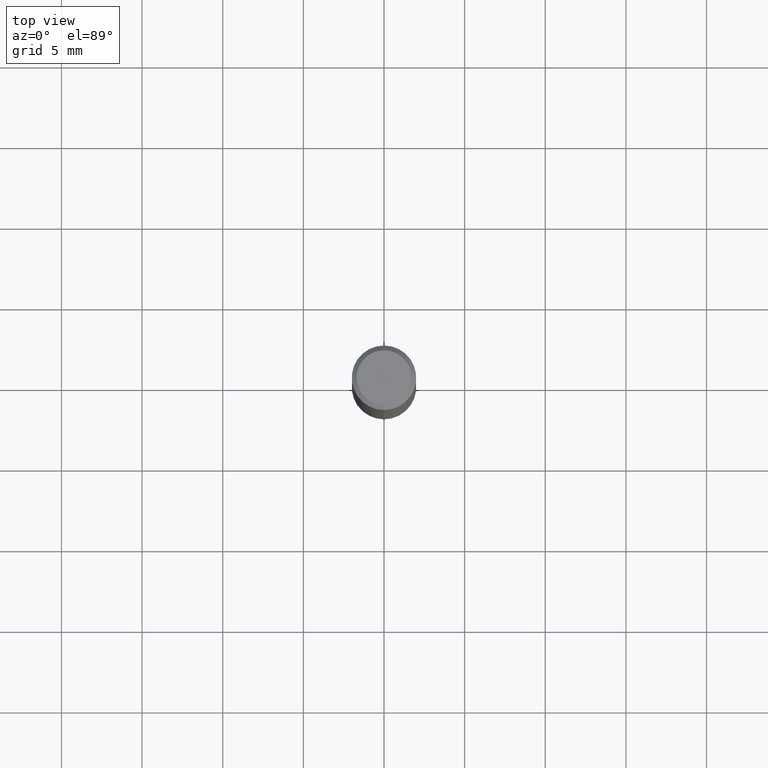
[diagram: clean part render]
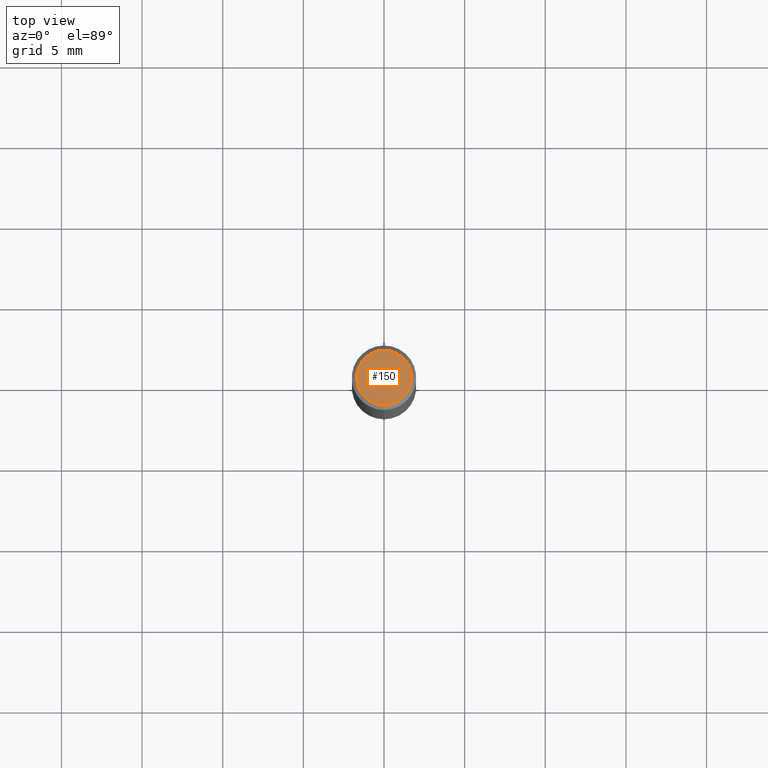
[diagram: same view with one face highlighted and labeled with its STEP entity id]
A machine part, top view. The second image highlights one B-rep face of the part: STEP entity #150.
In plain terms, the highlighted planar face has unit normal (-0, 0, 1).
Its self-contained STEP definition (entity closure, byte-faithful):
#110=VERTEX_POINT('',#254);
#150=ADVANCED_FACE('',(#298),#299,.T.);
#160=VERTEX_POINT('',#313);
#190=EDGE_CURVE('',#160,#110,#347,.T.);
#204=EDGE_CURVE('',#110,#160,#362,.T.);
#254=CARTESIAN_POINT('',(2.08183080149804E-016,-1.7,0.0));
#298=FACE_OUTER_BOUND('',#463,.T.);
#299=PLANE('',#464);
#313=CARTESIAN_POINT('',(0.0,1.7,0.0));
#347=CIRCLE('',#522,1.7);
#362=CIRCLE('',#543,1.7);
#463=EDGE_LOOP('',(#647,#648));
#464=AXIS2_PLACEMENT_3D('',#649,#650,#651);
#522=AXIS2_PLACEMENT_3D('',#709,#710,#711);
#543=AXIS2_PLACEMENT_3D('',#730,#731,#732);
#647=ORIENTED_EDGE('',*,*,#190,.F.);
#648=ORIENTED_EDGE('',*,*,#204,.F.);
#649=CARTESIAN_POINT('',(0.0,0.85,0.0));
#650=DIRECTION('',(-0.0,0.0,1.0));
#651=DIRECTION('',(0.0,-1.0,0.0));
#709=CARTESIAN_POINT('',(0.0,0.0,0.0));
#710=DIRECTION('',(0.0,0.0,-1.0));
#711=DIRECTION('',(0.0,1.0,0.0));
#730=CARTESIAN_POINT('',(0.0,0.0,0.0));
#731=DIRECTION('',(0.0,0.0,-1.0));
#732=DIRECTION('',(0.0,1.0,0.0));